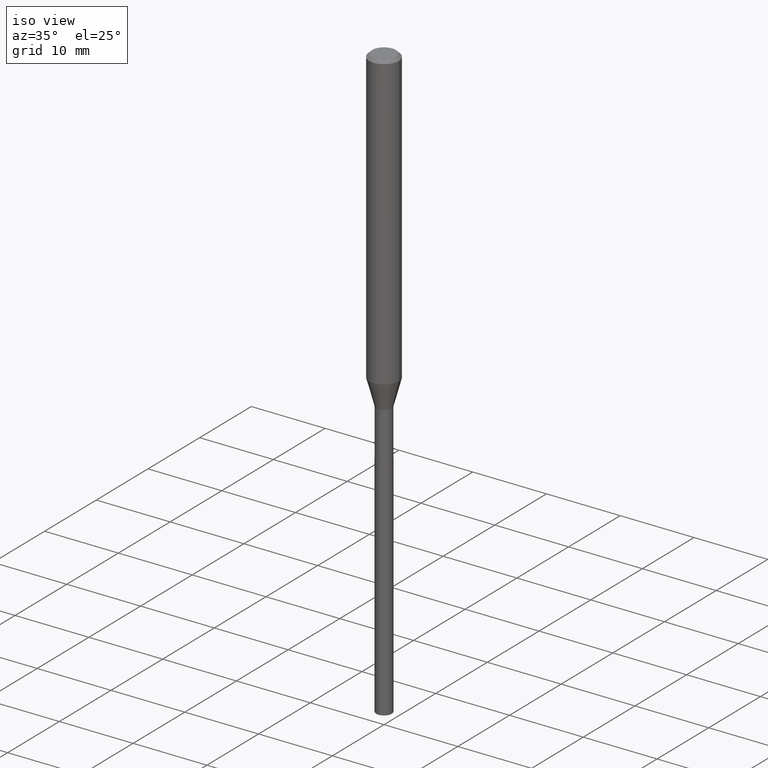
[diagram: clean part render]
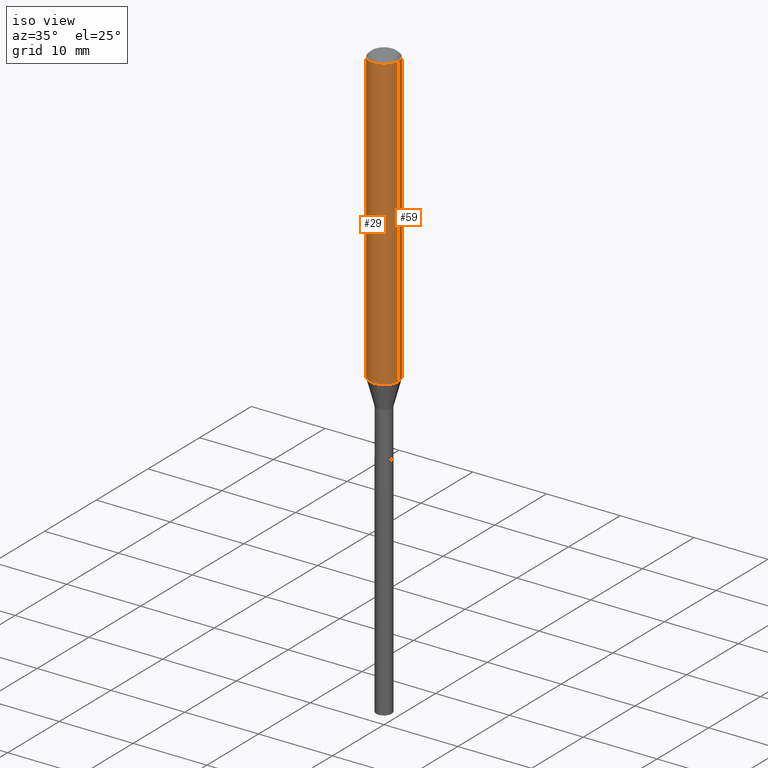
[diagram: same view with one multi-face feature highlighted, each face labeled with its STEP entity id]
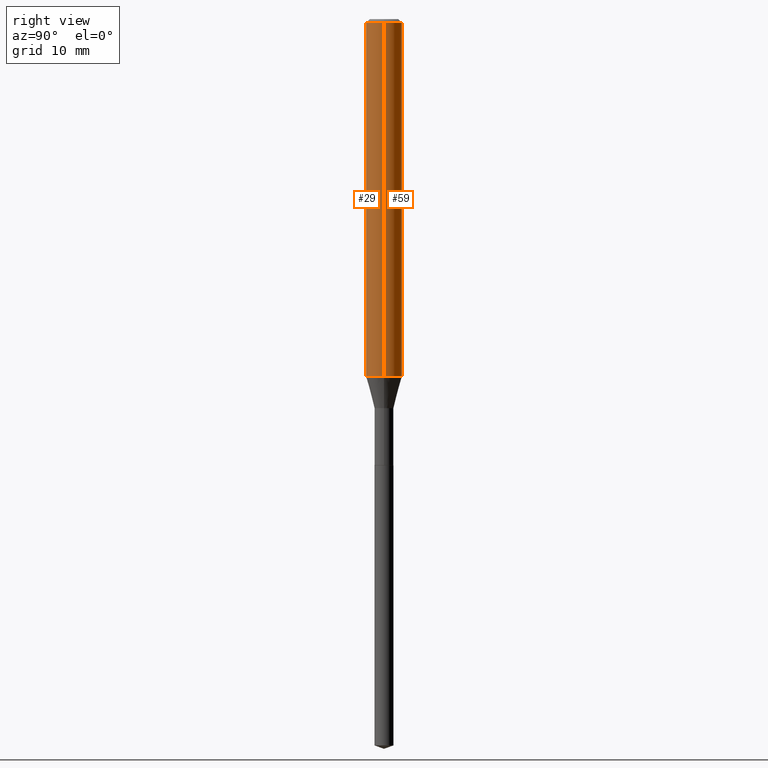
[diagram: same view with one multi-face feature highlighted, each face labeled with its STEP entity id]
A machine part, iso view. The highlighted faces form ONE feature: a constant-radius fillet chain: 2 tangent blend faces with common blend radius 2.0003 mm. The faces share edges in the B-rep.
A second angle (right view) of the same feature is appended — it is thin or edge-on in the first view.
Their STEP definitions:
[1] entity #59 (Cylinder):
#5 = CARTESIAN_POINT ( 'NONE',  ( -0.07875000000000000056, -2.192383083753355397E-15, -0.01575000000000009032 ) ) ;
#30 = AXIS2_PLACEMENT_3D ( 'NONE', #234, #457, #163 ) ;
#41 = DIRECTION ( 'NONE',  ( -2.445468806185136877E-29, 3.491481338843145188E-15, 1.000000000000000000 ) ) ;
#44 = EDGE_CURVE ( 'NONE', #207, #292, #348, .T. ) ;
#47 = DIRECTION ( 'NONE',  ( -2.445468806185136597E-29, 3.491481338843145583E-15, 1.000000000000000000 ) ) ;
#59 = ADVANCED_FACE ( 'NONE', ( #164 ), #277, .T. ) ;
#78 = VERTEX_POINT ( 'NONE', #5 ) ;
#86 = CARTESIAN_POINT ( 'NONE',  ( 3.851613369741612172E-31, -5.499083108677985842E-17, -0.01575000000000009032 ) ) ;
#88 = CARTESIAN_POINT ( 'NONE',  ( -0.07875000000000009770, 5.595524044110795906E-16, -3.873661383575743397E-30 ) ) ;
#90 = DIRECTION ( 'NONE',  ( 1.000000000000000000, -6.982962677686265922E-15, 0.000000000000000000 ) ) ;
#110 = ORIENTED_EDGE ( 'NONE', *, *, #456, .F. ) ;
#119 = CARTESIAN_POINT ( 'NONE',  ( 0.07875000000000000056, -6.048991419545733705E-16, -0.01575000000000009032 ) ) ;
#128 = ORIENTED_EDGE ( 'NONE', *, *, #401, .T. ) ;
#136 = EDGE_CURVE ( 'NONE', #207, #328, #321, .T. ) ;
#142 = ORIENTED_EDGE ( 'NONE', *, *, #136, .T. ) ;
#163 = DIRECTION ( 'NONE',  ( 1.000000000000000000, -6.982962677686269077E-15, 0.000000000000000000 ) ) ;
#164 = FACE_OUTER_BOUND ( 'NONE', #343, .T. ) ;
#179 = VECTOR ( 'NONE', #278, 39.37007874015748143 ) ;
#207 = VERTEX_POINT ( 'NONE', #320 ) ;
#234 = CARTESIAN_POINT ( 'NONE',  ( 3.816450706921478989E-29, -5.448880145242093007E-15, -1.560621299796923767 ) ) ;
#277 = CYLINDRICAL_SURFACE ( 'NONE', #452, 0.07875000000000009770 ) ;
#278 = DIRECTION ( 'NONE',  ( -2.445468806185136877E-29, 3.491481338843145188E-15, 1.000000000000000000 ) ) ;
#292 = VERTEX_POINT ( 'NONE', #119 ) ;
#310 = CARTESIAN_POINT ( 'NONE',  ( 0.07875000000000009770, -5.499083108677942332E-16, 3.839989210939303921E-30 ) ) ;
#320 = CARTESIAN_POINT ( 'NONE',  ( 0.07875000000000019484, -5.998788456109887930E-15, -1.560621299796923767 ) ) ;
#321 = CIRCLE ( 'NONE', #30, 0.07875000000000019484 ) ;
#324 = LINE ( 'NONE', #88, #403 ) ;
#328 = VERTEX_POINT ( 'NONE', #475 ) ;
#336 = ORIENTED_EDGE ( 'NONE', *, *, #44, .F. ) ;
#343 = EDGE_LOOP ( 'NONE', ( #142, #128, #110, #336 ) ) ;
#348 = LINE ( 'NONE', #310, #179 ) ;
#354 = CARTESIAN_POINT ( 'NONE',  ( 0.000000000000000000, 0.000000000000000000, 0.000000000000000000 ) ) ;
#360 = CIRCLE ( 'NONE', #478, 0.07875000000000000056 ) ;
#373 = DIRECTION ( 'NONE',  ( 1.000000000000000000, -6.982962677686267499E-15, 4.876176775795935232E-29 ) ) ;
#401 = EDGE_CURVE ( 'NONE', #328, #78, #324, .T. ) ;
#403 = VECTOR ( 'NONE', #41, 39.37007874015748143 ) ;
#450 = DIRECTION ( 'NONE',  ( -2.445468806185136597E-29, 3.491481338843145583E-15, 1.000000000000000000 ) ) ;
#452 = AXIS2_PLACEMENT_3D ( 'NONE', #354, #450, #373 ) ;
#456 = EDGE_CURVE ( 'NONE', #292, #78, #360, .T. ) ;
#457 = DIRECTION ( 'NONE',  ( -2.445468806185136597E-29, 3.491481338843145583E-15, 1.000000000000000000 ) ) ;
#475 = CARTESIAN_POINT ( 'NONE',  ( -0.07875000000000019484, -4.889327740831012628E-15, -1.560621299796923767 ) ) ;
#478 = AXIS2_PLACEMENT_3D ( 'NONE', #86, #47, #90 ) ;
[2] entity #29 (Cylinder):
#5 = CARTESIAN_POINT ( 'NONE',  ( -0.07875000000000000056, -2.192383083753355397E-15, -0.01575000000000009032 ) ) ;
#15 = DIRECTION ( 'NONE',  ( -2.445468806185136597E-29, 3.491481338843145583E-15, 1.000000000000000000 ) ) ;
#29 = ADVANCED_FACE ( 'NONE', ( #51 ), #63, .T. ) ;
#41 = DIRECTION ( 'NONE',  ( -2.445468806185136877E-29, 3.491481338843145188E-15, 1.000000000000000000 ) ) ;
#44 = EDGE_CURVE ( 'NONE', #207, #292, #348, .T. ) ;
#51 = FACE_OUTER_BOUND ( 'NONE', #361, .T. ) ;
#52 = EDGE_CURVE ( 'NONE', #328, #207, #483, .T. ) ;
#63 = CYLINDRICAL_SURFACE ( 'NONE', #398, 0.07875000000000009770 ) ;
#68 = EDGE_CURVE ( 'NONE', #78, #292, #246, .T. ) ;
#78 = VERTEX_POINT ( 'NONE', #5 ) ;
#88 = CARTESIAN_POINT ( 'NONE',  ( -0.07875000000000009770, 5.595524044110795906E-16, -3.873661383575743397E-30 ) ) ;
#106 = ORIENTED_EDGE ( 'NONE', *, *, #44, .T. ) ;
#119 = CARTESIAN_POINT ( 'NONE',  ( 0.07875000000000000056, -6.048991419545733705E-16, -0.01575000000000009032 ) ) ;
#135 = DIRECTION ( 'NONE',  ( -2.445468806185136597E-29, 3.491481338843145583E-15, 1.000000000000000000 ) ) ;
#149 = ORIENTED_EDGE ( 'NONE', *, *, #401, .F. ) ;
#150 = AXIS2_PLACEMENT_3D ( 'NONE', #430, #15, #240 ) ;
#179 = VECTOR ( 'NONE', #278, 39.37007874015748143 ) ;
#188 = CARTESIAN_POINT ( 'NONE',  ( 3.851613369741612172E-31, -5.499083108677985842E-17, -0.01575000000000009032 ) ) ;
#199 = AXIS2_PLACEMENT_3D ( 'NONE', #188, #407, #342 ) ;
#207 = VERTEX_POINT ( 'NONE', #320 ) ;
#240 = DIRECTION ( 'NONE',  ( 1.000000000000000000, -6.982962677686269077E-15, 0.000000000000000000 ) ) ;
#246 = CIRCLE ( 'NONE', #199, 0.07875000000000000056 ) ;
#276 = DIRECTION ( 'NONE',  ( 1.000000000000000000, -6.982962677686267499E-15, 4.876176775795935232E-29 ) ) ;
#278 = DIRECTION ( 'NONE',  ( -2.445468806185136877E-29, 3.491481338843145188E-15, 1.000000000000000000 ) ) ;
#292 = VERTEX_POINT ( 'NONE', #119 ) ;
#310 = CARTESIAN_POINT ( 'NONE',  ( 0.07875000000000009770, -5.499083108677942332E-16, 3.839989210939303921E-30 ) ) ;
#320 = CARTESIAN_POINT ( 'NONE',  ( 0.07875000000000019484, -5.998788456109887930E-15, -1.560621299796923767 ) ) ;
#324 = LINE ( 'NONE', #88, #403 ) ;
#328 = VERTEX_POINT ( 'NONE', #475 ) ;
#342 = DIRECTION ( 'NONE',  ( 1.000000000000000000, -6.982962677686265922E-15, 0.000000000000000000 ) ) ;
#348 = LINE ( 'NONE', #310, #179 ) ;
#361 = EDGE_LOOP ( 'NONE', ( #149, #485, #106, #382 ) ) ;
#382 = ORIENTED_EDGE ( 'NONE', *, *, #68, .F. ) ;
#398 = AXIS2_PLACEMENT_3D ( 'NONE', #473, #135, #276 ) ;
#401 = EDGE_CURVE ( 'NONE', #328, #78, #324, .T. ) ;
#403 = VECTOR ( 'NONE', #41, 39.37007874015748143 ) ;
#407 = DIRECTION ( 'NONE',  ( -2.445468806185136597E-29, 3.491481338843145583E-15, 1.000000000000000000 ) ) ;
#430 = CARTESIAN_POINT ( 'NONE',  ( 3.816450706921478989E-29, -5.448880145242093007E-15, -1.560621299796923767 ) ) ;
#473 = CARTESIAN_POINT ( 'NONE',  ( 0.000000000000000000, 0.000000000000000000, 0.000000000000000000 ) ) ;
#475 = CARTESIAN_POINT ( 'NONE',  ( -0.07875000000000019484, -4.889327740831012628E-15, -1.560621299796923767 ) ) ;
#483 = CIRCLE ( 'NONE', #150, 0.07875000000000019484 ) ;
#485 = ORIENTED_EDGE ( 'NONE', *, *, #52, .T. ) ;